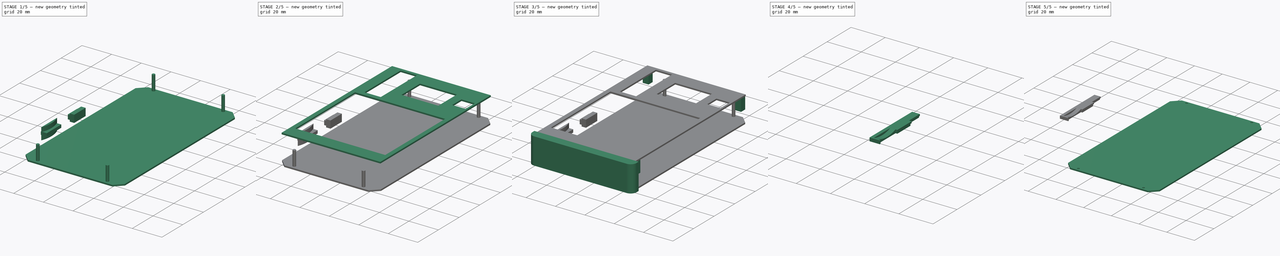
[diagram: build sequence overview — one tinted view per stage of 5, left to right]
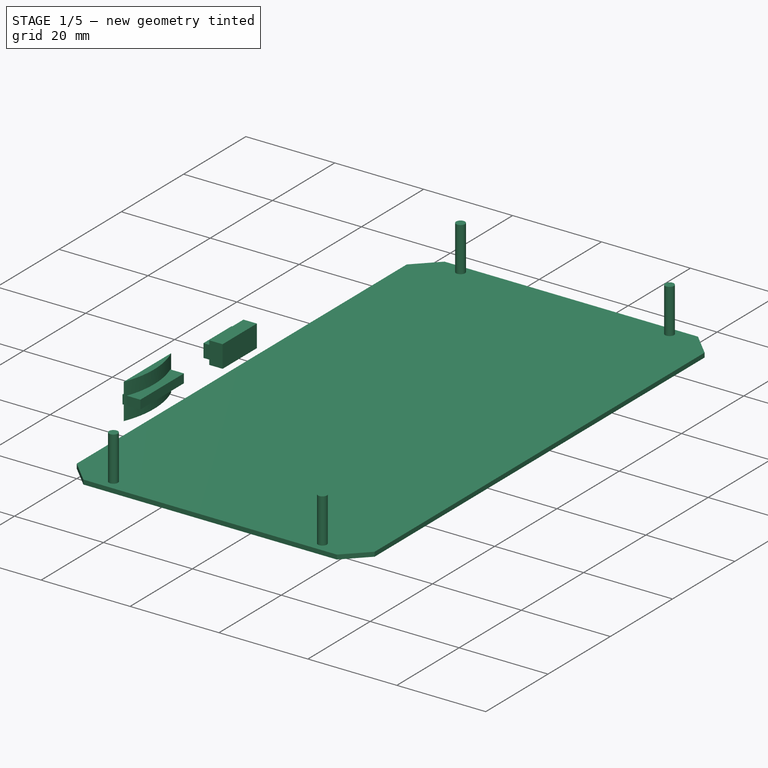
[diagram: stage 1 of 5 — iso view after this stage's code; geometry added in this stage tinted green]
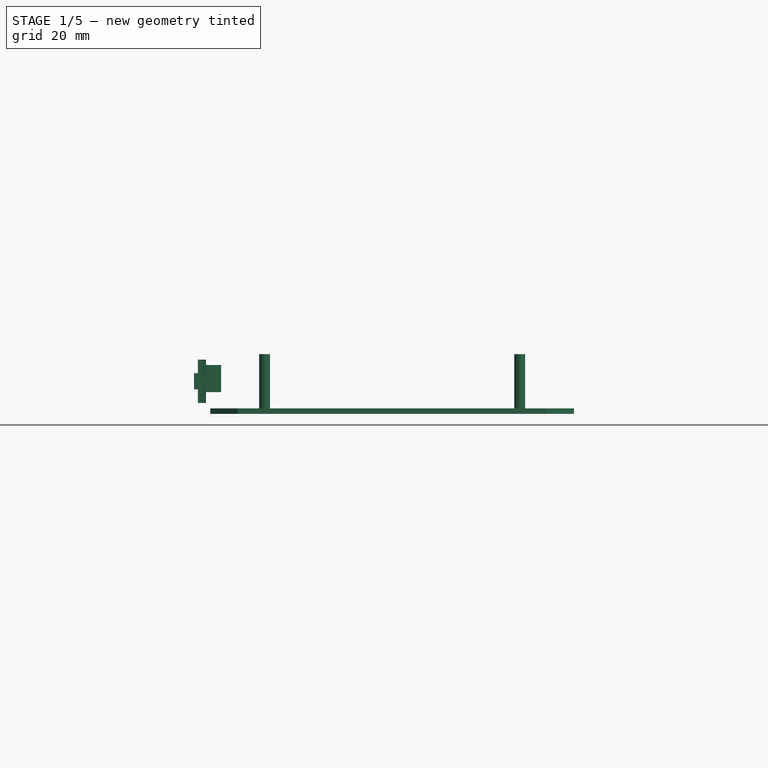
[diagram: stage 1 of 5 — front view after this stage's code; geometry added in this stage tinted green]
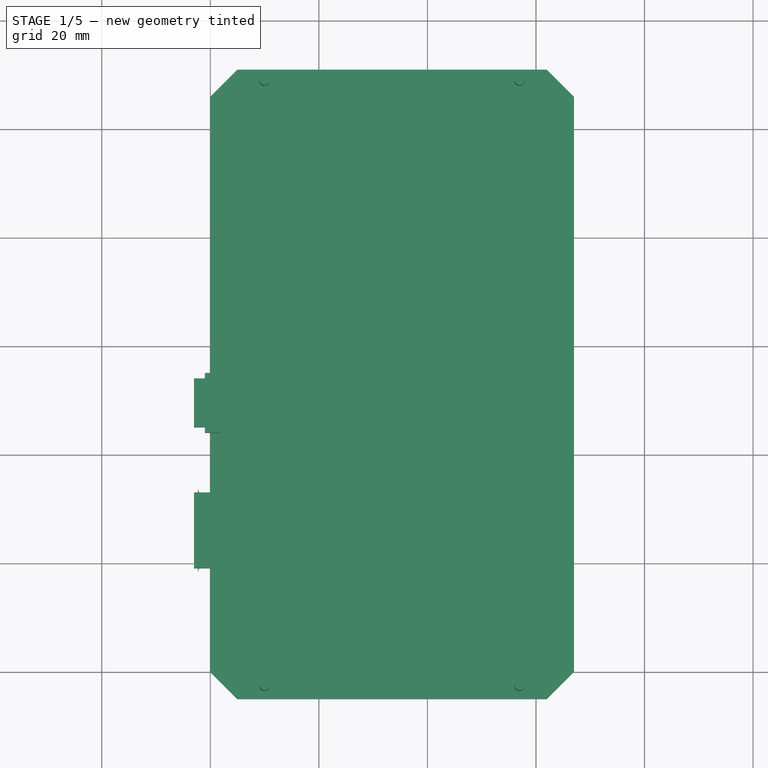
[diagram: stage 1 of 5 — top view after this stage's code; geometry added in this stage tinted green]
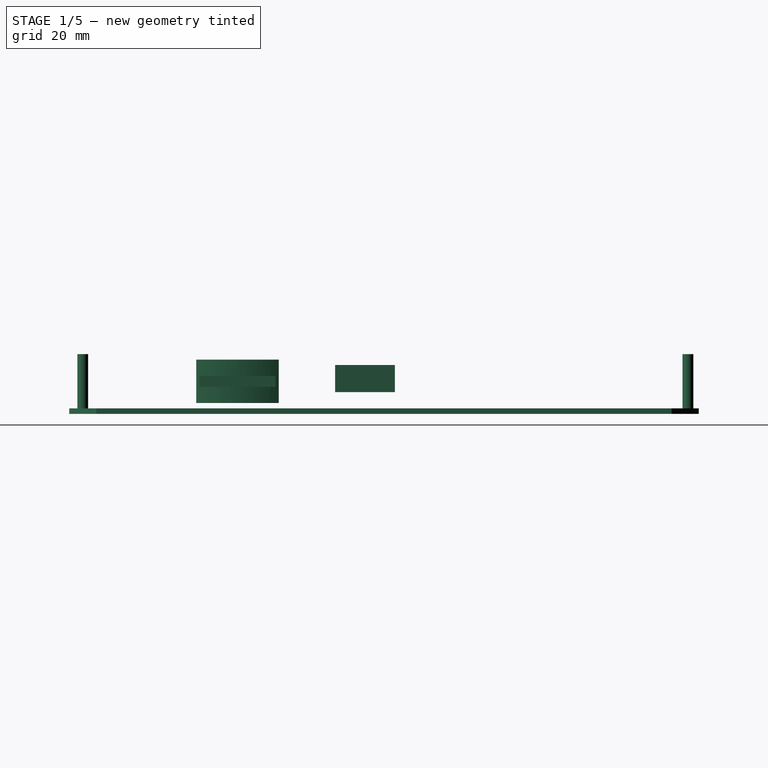
[diagram: stage 1 of 5 — right view after this stage's code; geometry added in this stage tinted green]
FCSTD DOCUMENT  (FreeCAD 0.15R4263 (Git))
Label: pavapro_box2mr
License: CC-BY 3.0
LicenseURL: http://creativecommons.org/licenses/by/3.0/
objects: Part::Box×15, Part::MultiFuse×6, Sketcher::SketchObject×4, PartDesign::Pad×4, Part::Cylinder×4, Part::Cut×3, Part::Mirroring×1, Part::MultiCommon×1
note: 42 computed .brp shape members not serialized (recipe doc carries the construction recipe); baked Part::Feature solids carry a one-line shape summary decoded from their .brp

FEATURE [Part::Box] Box013  label="Cube013"
  Height = 2
  Length = 4
  Placement = pos=(-3,19,-13) rot=(0,0,1;0rad)
  Width = 14
FEATURE [Part::Box] Box014  label="Cube014"
  Height = 3
  Length = 4
  Placement = pos=(-3,45,-13.5) rot=(0,0,1;0rad)
  Width = 9
FEATURE [Sketcher::SketchObject] Sketch001
  Placement = pos=(3.2,-20,-16) rot=(0,0,1;0rad)
  sketch-geometry (2):
    g0: ArcOfCircle CenterX=-24 CenterY=46 CenterZ=0 NormalX=0 NormalY=0 NormalZ=1 Radius=20 StartAngle=5.89342 EndAngle=6.67295
    g1: LineSegment StartX=-5.5 StartY=53.5993 StartZ=0 EndX=-5.5 EndY=38.4007 EndZ=0
  constraints (3):
    c: Vertical(g1)
    c: Coincident(g1,g0)
    c: Coincident(g1,g0)
FEATURE [PartDesign::Pad] Pad001
  Length = 8
  Length2 = 100
  Placement = pos=(3.2,-20,-16) rot=(0,0,1;0rad)
  Sketch = -> Sketch001
  Type = 0
FEATURE [Sketcher::SketchObject] Sketch002
  Placement = pos=(0,0,-18) rot=(0,0,1;0rad)
  sketch-geometry (8):
    g0: LineSegment StartX=0 StartY=0 StartZ=0 EndX=5 EndY=-5 EndZ=0
    g1: LineSegment StartX=5 StartY=-5 StartZ=0 EndX=62 EndY=-5 EndZ=0
    g2: LineSegment StartX=62 StartY=-5 StartZ=0 EndX=67 EndY=0 EndZ=0
    g3: LineSegment StartX=67 StartY=0 StartZ=0 EndX=67 EndY=106 EndZ=0
    g4: LineSegment StartX=67 StartY=106 StartZ=0 EndX=62 EndY=111 EndZ=0
    g5: LineSegment StartX=62 StartY=111 StartZ=0 EndX=5 EndY=111 EndZ=0
    g6: LineSegment StartX=5 StartY=111 StartZ=0 EndX=0 EndY=106 EndZ=0
    g7: LineSegment StartX=0 StartY=106 StartZ=0 EndX=0 EndY=0 EndZ=0
  constraints (9):
    c: Coincident(g-1,g0)
    c: Coincident(g0,g1)
    c: Coincident(g1,g2)
    c: Coincident(g2,g3)
    c: Coincident(g3,g4)
    c: Coincident(g4,g5)
    c: Coincident(g5,g6)
    c: Coincident(g6,g7)
    c: Coincident(g7,g0)
FEATURE [PartDesign::Pad] Pad002
  Length = 1
  Length2 = 100
  Placement = pos=(0,0,-18) rot=(0,0,1;0rad)
  Sketch = -> Sketch002
  Type = 0
FEATURE [Part::MultiFuse] Fusion004
  Placement = pos=(0,0,1) rot=(0,0,1;0rad)
FEATURE [Part::Box] Box016  label="Cube016"
  Height = 5
  Length = 3
  Placement = pos=(-1,44,-14) rot=(0,0,1;0rad)
  Width = 11
FEATURE [Part::MultiFuse] Fusion010
  Shapes = -> [Box016,Pad002,Box014,Box013,Fusion004,Pad001]
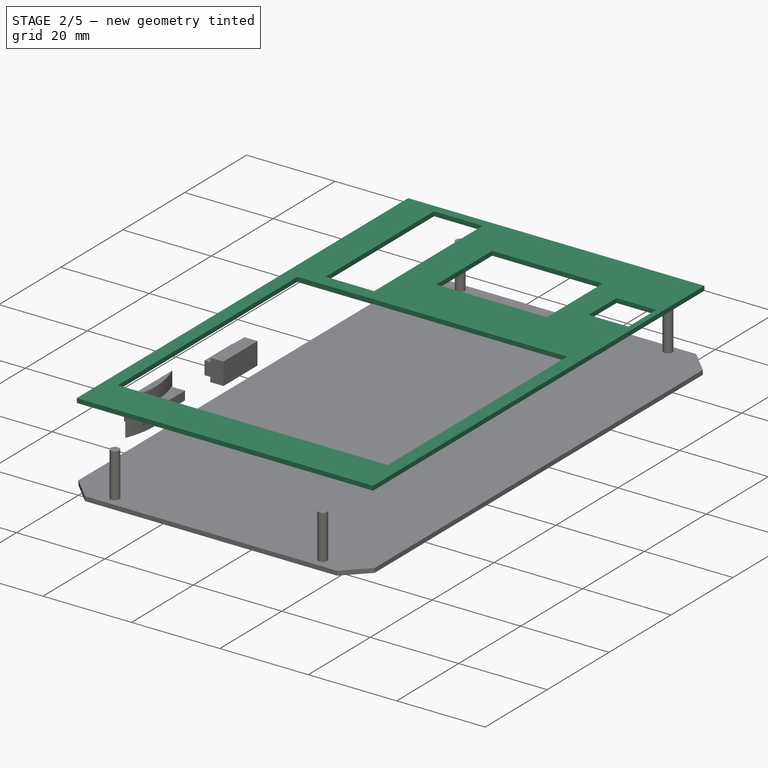
[diagram: stage 2 of 5 — iso view after this stage's code; geometry added in this stage tinted green]
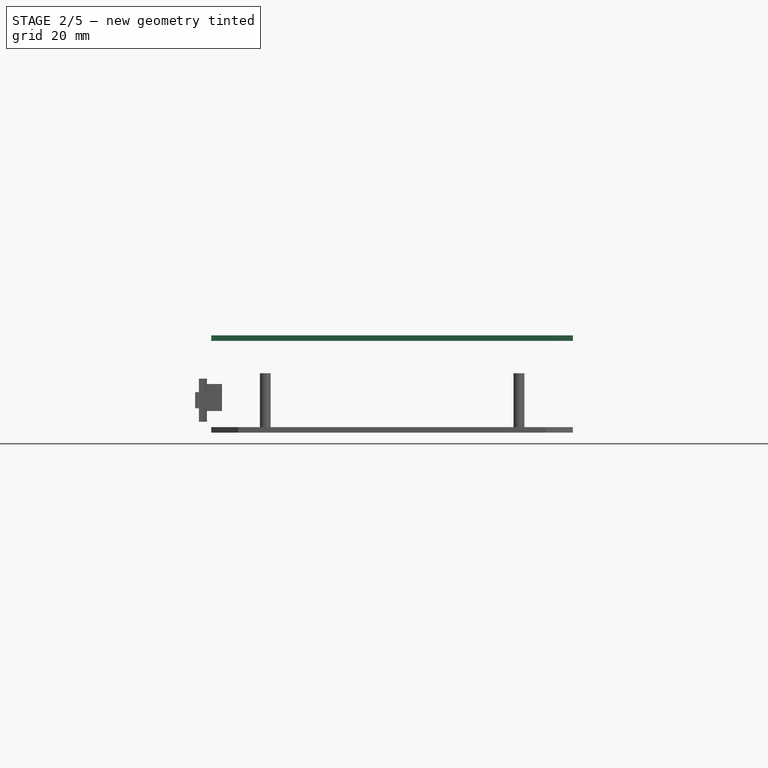
[diagram: stage 2 of 5 — front view after this stage's code; geometry added in this stage tinted green]
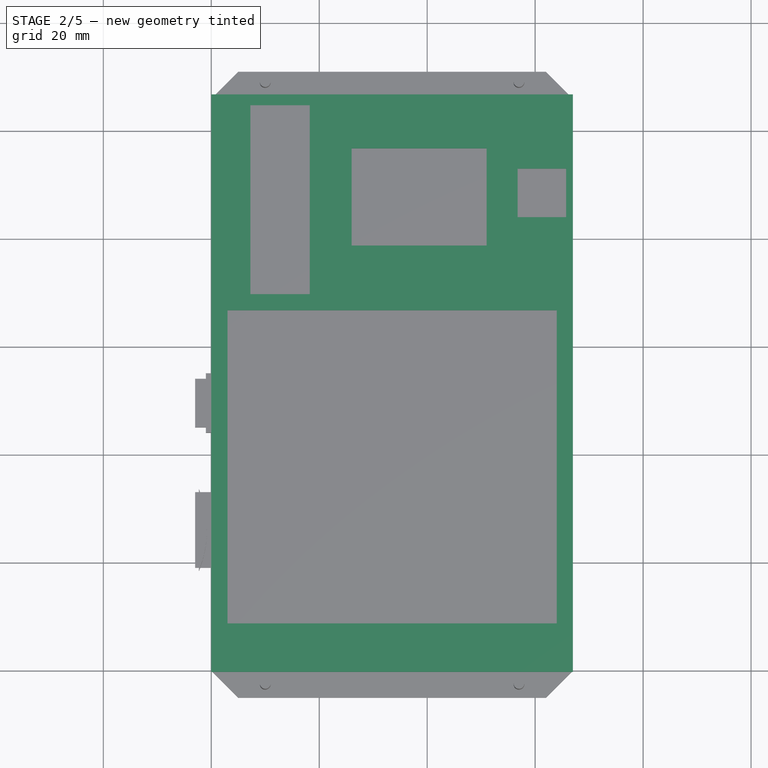
[diagram: stage 2 of 5 — top view after this stage's code; geometry added in this stage tinted green]
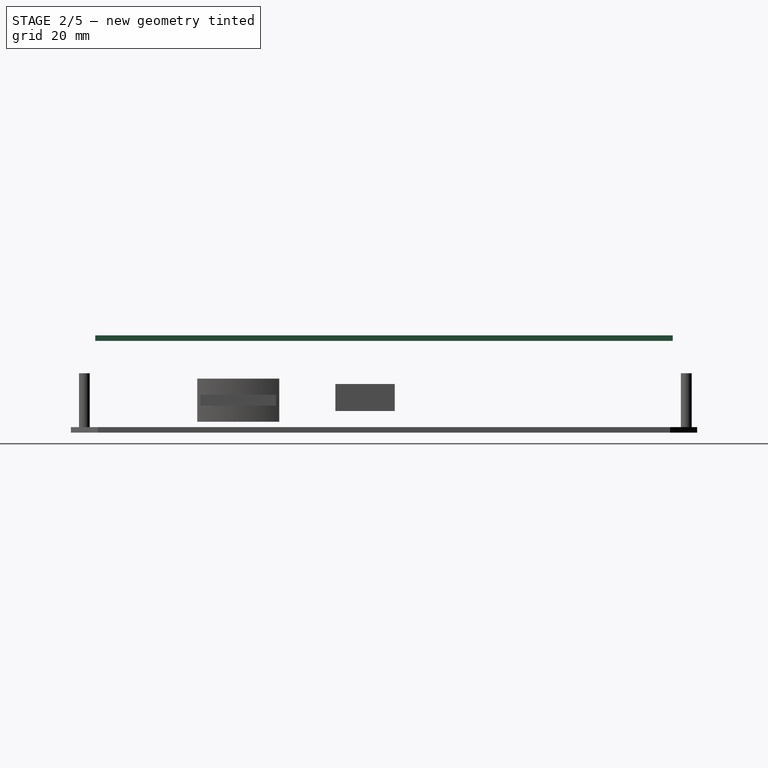
[diagram: stage 2 of 5 — right view after this stage's code; geometry added in this stage tinted green]
FEATURE [Part::Box] Box001  label="Cube001"
  Height = 1
  Length = 61
  Placement = pos=(3,8.5,0) rot=(0,0,1;0rad)
  Width = 58
FEATURE [Part::Box] Box002  label="Cube002"
  Height = 1
  Length = 11
  Placement = pos=(7.25,69.5,0) rot=(0,0,1;0rad)
  Width = 35
FEATURE [Part::Box] Box003  label="Cube003"
  Height = 1
  Length = 25
  Placement = pos=(26,78.5,0) rot=(0,0,1;0rad)
  Width = 18
FEATURE [Part::Box] Box004  label="Cube004"
  Height = 1
  Length = 9
  Placement = pos=(56.75,83.75,0) rot=(0,0,1;0rad)
  Width = 9
FEATURE [Part::Box] Box  label="Cube"
  Height = 1
  Length = 67
  Placement = pos=(0,-0.5,-1) rot=(0,0,1;0rad)
  Width = 107
FEATURE [Part::MultiFuse] Fusion
  Placement = pos=(0,0,-1) rot=(0,0,1;0rad)
  Shapes = -> [Box002,Box003,Box001,Box004]
FEATURE [Part::Cut] Cut
  Base = -> Box
  Tool = -> Fusion
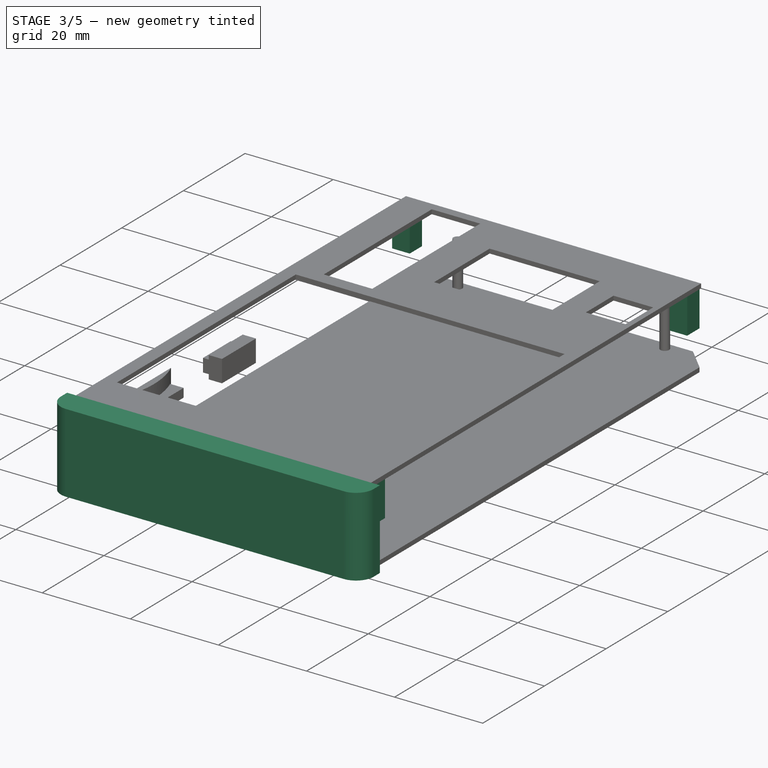
[diagram: stage 3 of 5 — iso view after this stage's code; geometry added in this stage tinted green]
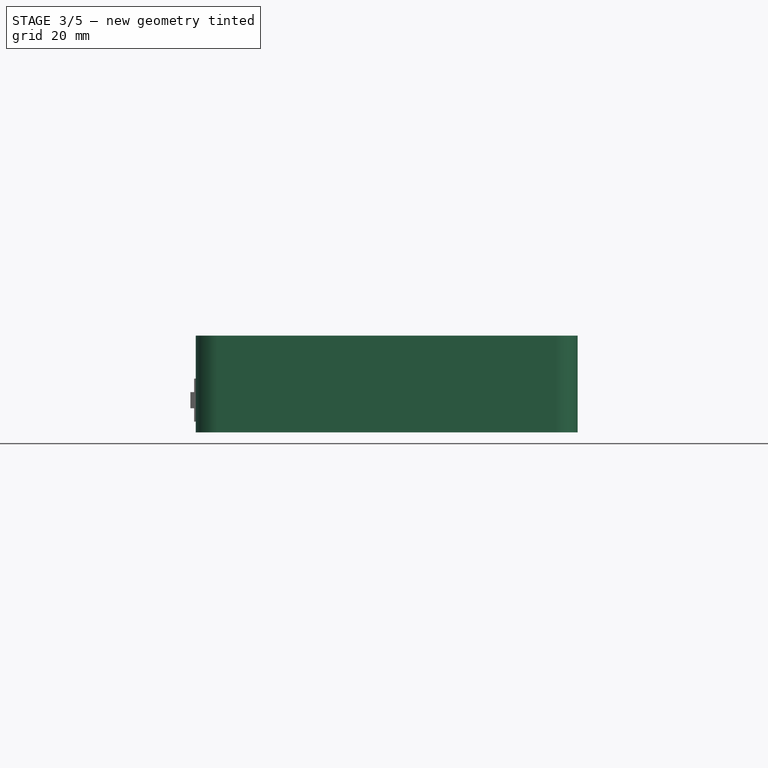
[diagram: stage 3 of 5 — front view after this stage's code; geometry added in this stage tinted green]
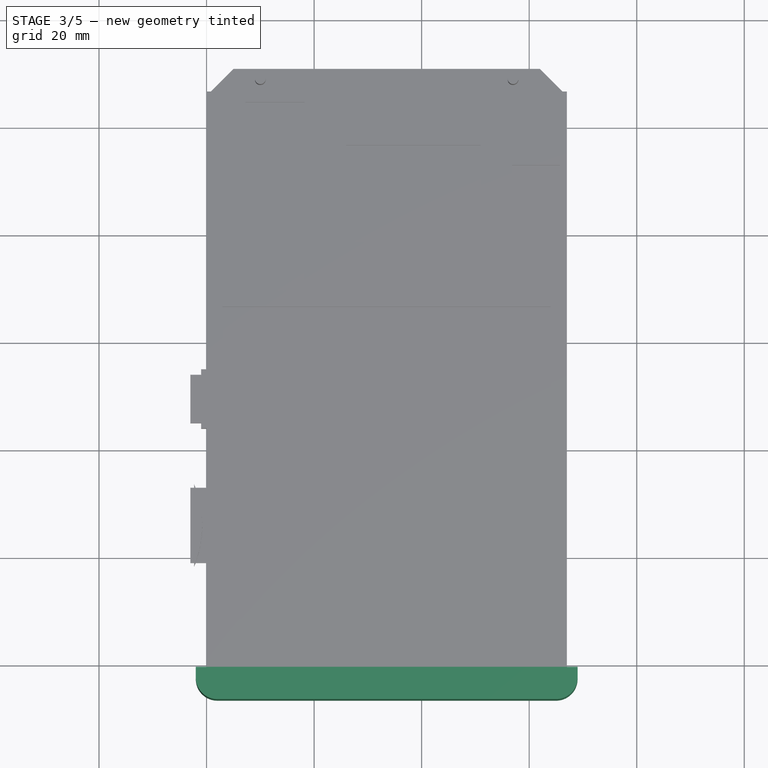
[diagram: stage 3 of 5 — top view after this stage's code; geometry added in this stage tinted green]
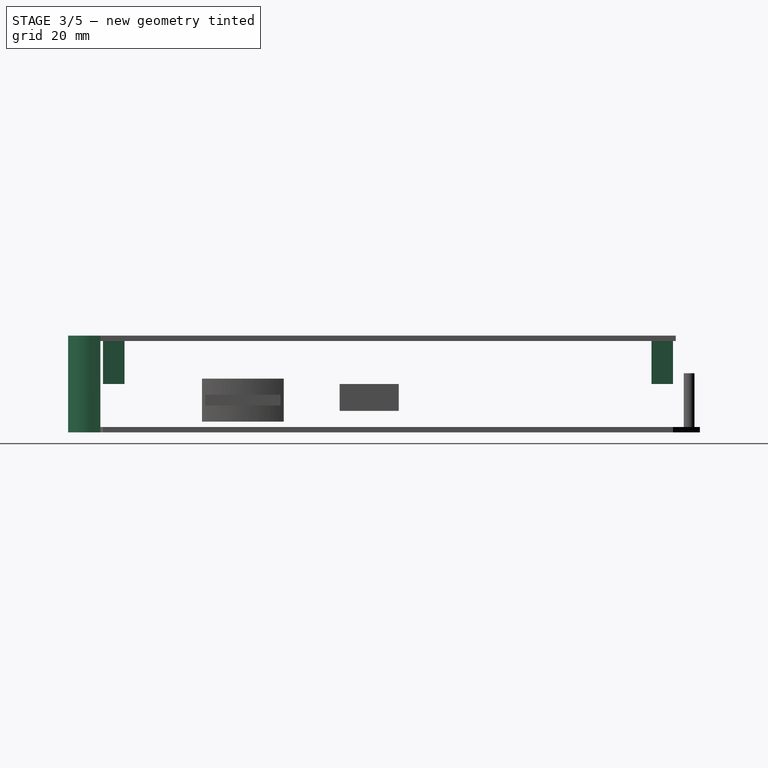
[diagram: stage 3 of 5 — right view after this stage's code; geometry added in this stage tinted green]
FEATURE [Sketcher::SketchObject] Sketch
  Placement = pos=(0,-2.5,-18) rot=(0,0,1;0rad)
  sketch-geometry (6):
    g0: LineSegment StartX=65 StartY=-4 StartZ=0 EndX=2 EndY=-4 EndZ=0
    g1: ArcOfCircle CenterX=65 CenterY=0 CenterZ=0 NormalX=0 NormalY=0 NormalZ=1 Radius=4 StartAngle=4.71239 EndAngle=6.28319
    g2: ArcOfCircle CenterX=2 CenterY=0 CenterZ=0 NormalX=0 NormalY=0 NormalZ=1 Radius=4 StartAngle=3.14159 EndAngle=4.71239
    g3: LineSegment StartX=-2 StartY=-1e-12 StartZ=0 EndX=-2 EndY=2 EndZ=0
    g4: LineSegment StartX=-2 StartY=2 StartZ=0 EndX=69 EndY=2 EndZ=0
    g5: LineSegment StartX=69 StartY=2 StartZ=0 EndX=69 EndY=2e-12 EndZ=0
  constraints (10):
    c: Horizontal(g0)
    c: PointOnObject(g1,g0)
    c: PointOnObject(g2,g0)
    c: Tangent(g2,g3)
    c: Coincident(g3,g4)
    c: Horizontal(g4)
    c: Coincident(g4,g5)
    c: Coincident(g5,g1)
    c: Vertical(g5)
    c: Tangent(g5,g1)
FEATURE [PartDesign::Pad] Pad
  Length = 18
  Length2 = 100
  Placement = pos=(0,-2.5,-18) rot=(0,0,1;0rad)
  Sketch = -> Sketch
  Type = 0
FEATURE [Part::Box] Box009  label="Cube009"
  Height = 8
  Length = 4
  Placement = pos=(0,0,-9) rot=(0,0,1;0rad)
  Width = 4
FEATURE [Part::Box] Box010  label="Cube010"
  Height = 8
  Length = 4
  Placement = pos=(63,0,-9) rot=(0,0,1;0rad)
  Width = 4
FEATURE [Part::Box] Box011  label="Cube011"
  Height = 8
  Length = 4
  Placement = pos=(0,102,-9) rot=(0,0,1;0rad)
  Width = 4
FEATURE [Part::Box] Box012  label="Cube012"
  Height = 8
  Length = 4
  Placement = pos=(63,102,-9) rot=(0,0,1;0rad)
  Width = 4
FEATURE [Part::MultiFuse] Fusion001
  Shapes = -> [Box009,Box010,Box011,Box012]
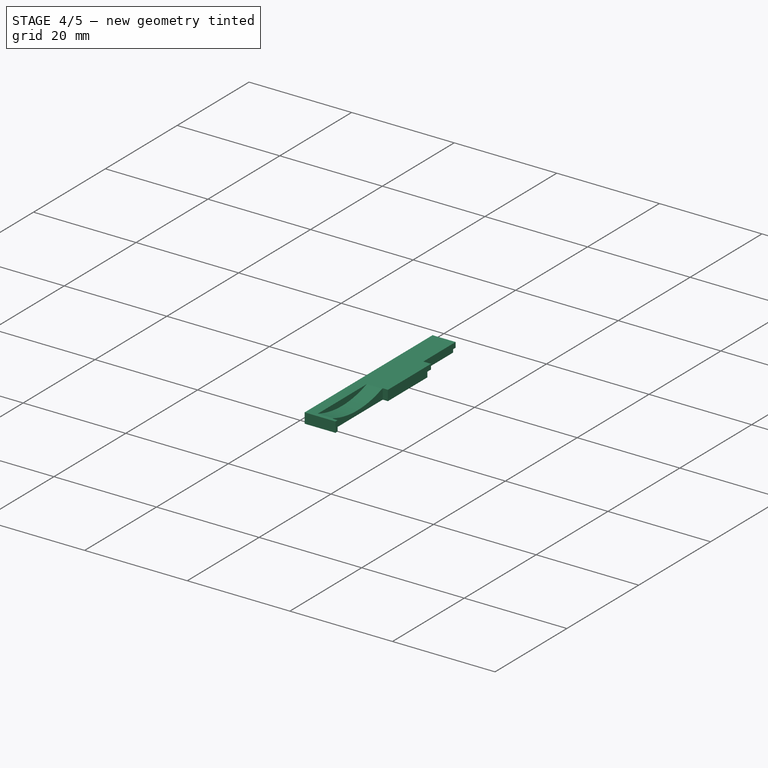
[diagram: stage 4 of 5 — iso view after this stage's code; geometry added in this stage tinted green]
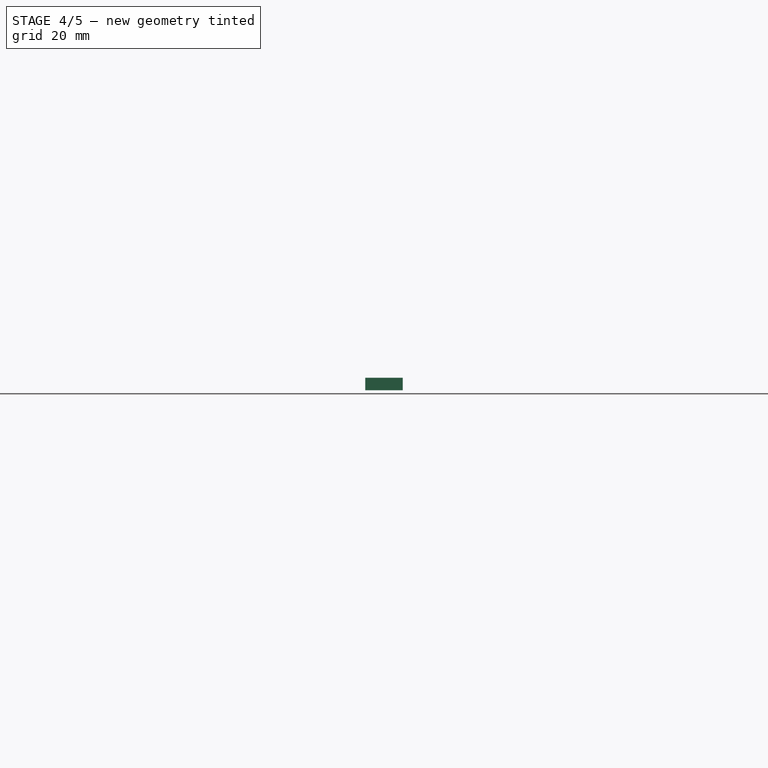
[diagram: stage 4 of 5 — front view after this stage's code; geometry added in this stage tinted green]
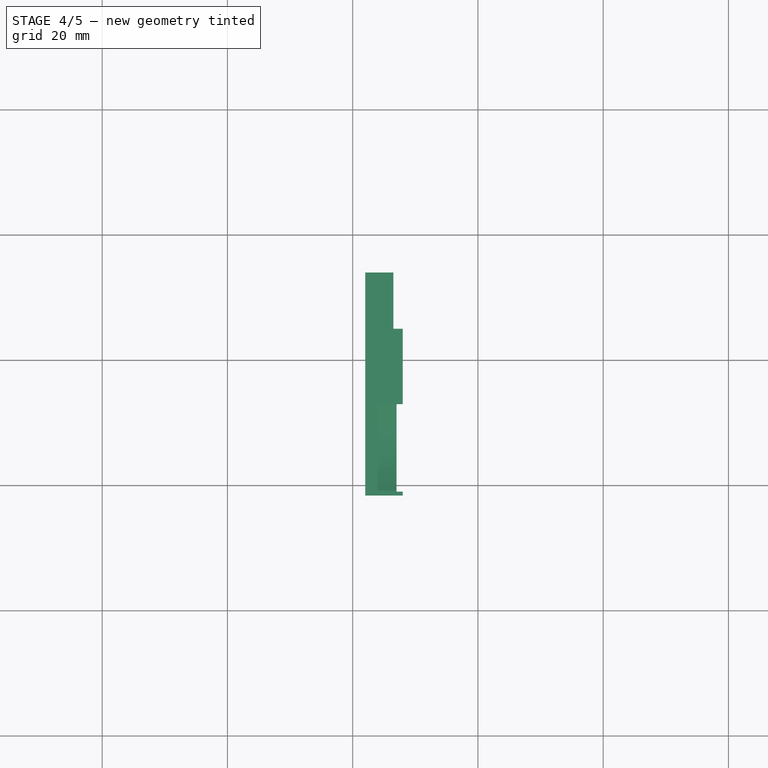
[diagram: stage 4 of 5 — top view after this stage's code; geometry added in this stage tinted green]
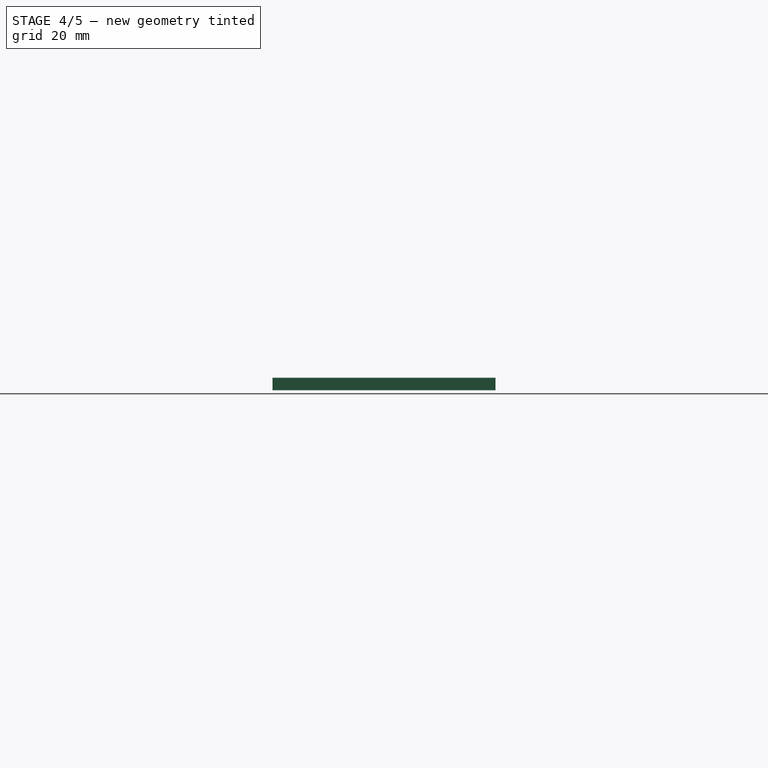
[diagram: stage 4 of 5 — right view after this stage's code; geometry added in this stage tinted green]
FEATURE [Part::Box] Box006  label="Cube006"
  Height = 18
  Length = 2
  Placement = pos=(-2,-0.5,-18) rot=(0,0,1;0rad)
  Width = 107
FEATURE [Part::Box] Box008  label="Cube008"
  Height = 18
  Length = 2
  Placement = pos=(67,-0.5,-18) rot=(0,0,1;0rad)
  Width = 107
FEATURE [Part::Mirroring] Part__Mirroring  label="Pad (Mirror #1)"
  Base = (0,0,0)
  Normal = (0,1,0)
  Placement = pos=(0,106,0) rot=(0,0,1;0rad)
  Source = -> Pad
FEATURE [Part::Box] Box015  label="Cube015"
  Height = 6
  Length = 4
  Placement = pos=(-3,18.4,-18) rot=(0,0,1;0rad)
  Width = 35.6
FEATURE [Part::MultiFuse] Fusion009
  Shapes = -> [Fusion001,Box006,Part__Mirroring,Pad,Box008,Cut]
FEATURE [Part::Cut] Cut003
  Base = -> Fusion009
  Tool = -> Fusion010
FEATURE [Part::MultiCommon] Common
  Placement = pos=(0,0,0) rot=(0,1,0;1.5708rad)
  Shapes = -> [Cut003,Box015]
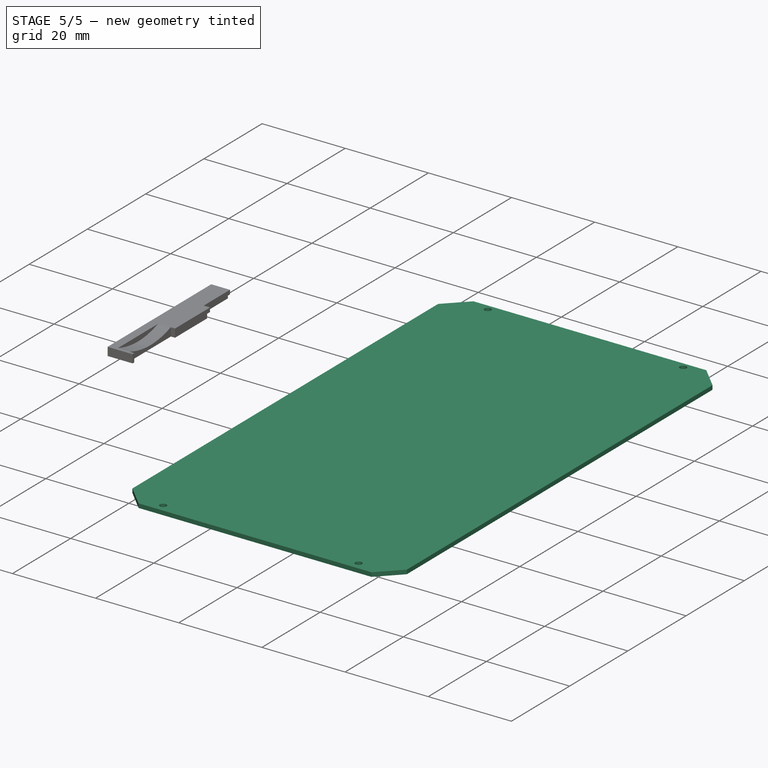
[diagram: stage 5 of 5 — iso view after this stage's code; geometry added in this stage tinted green]
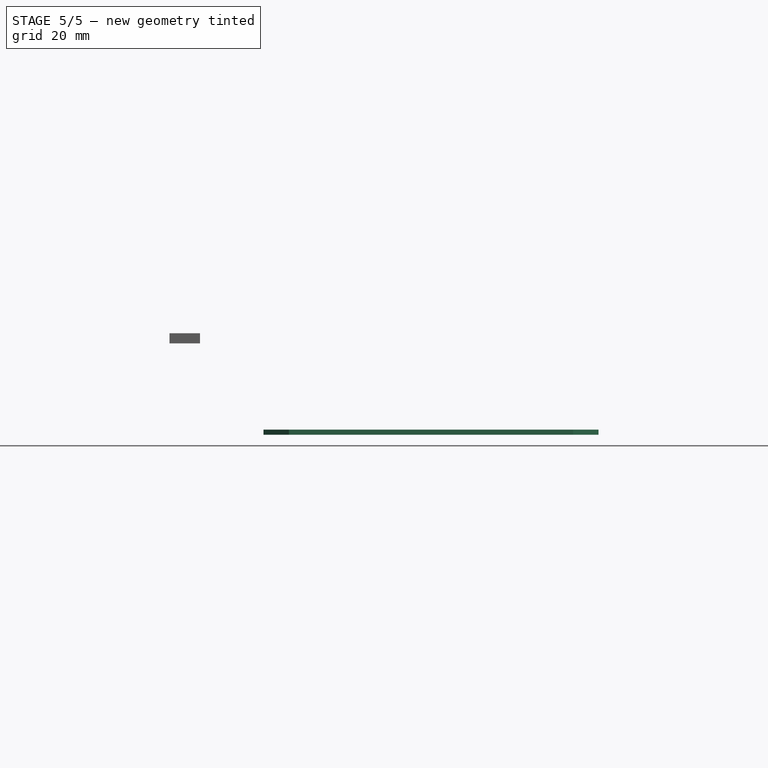
[diagram: stage 5 of 5 — front view after this stage's code; geometry added in this stage tinted green]
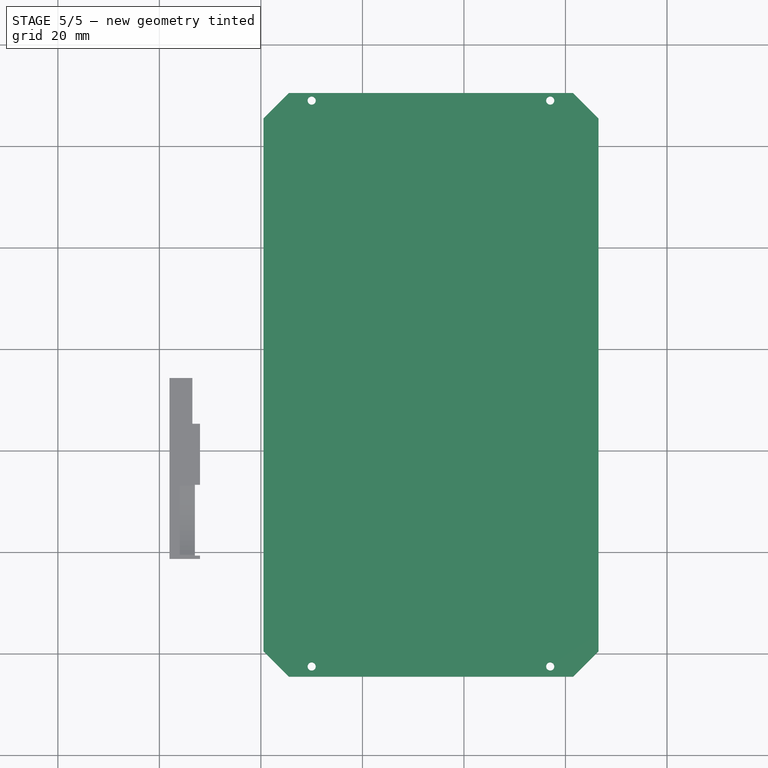
[diagram: stage 5 of 5 — top view after this stage's code; geometry added in this stage tinted green]
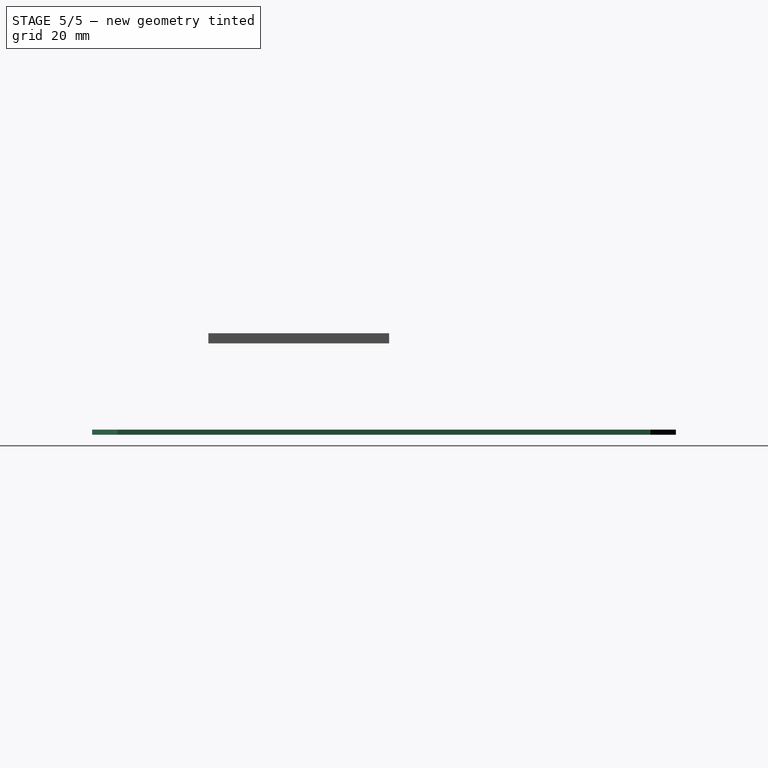
[diagram: stage 5 of 5 — right view after this stage's code; geometry added in this stage tinted green]
FEATURE [Sketcher::SketchObject] Sketch003
  Placement = pos=(0,0,-18) rot=(0,0,1;0rad)
  sketch-geometry (8):
    g0: LineSegment StartX=0.5 StartY=0.5 StartZ=0 EndX=5.5 EndY=-4.5 EndZ=0
    g1: LineSegment StartX=5.5 StartY=-4.5 StartZ=0 EndX=61.5 EndY=-4.5 EndZ=0
    g2: LineSegment StartX=61.5 StartY=-4.5 StartZ=0 EndX=66.5 EndY=0.5 EndZ=0
    g3: LineSegment StartX=66.5 StartY=0.5 StartZ=0 EndX=66.5 EndY=105.5 EndZ=0
    g4: LineSegment StartX=66.5 StartY=105.5 StartZ=0 EndX=61.5 EndY=110.5 EndZ=0
    g5: LineSegment StartX=61.5 StartY=110.5 StartZ=0 EndX=5.5 EndY=110.5 EndZ=0
    g6: LineSegment StartX=5.5 StartY=110.5 StartZ=0 EndX=0.5 EndY=105.5 EndZ=0
    g7: LineSegment StartX=0.5 StartY=105.5 StartZ=0 EndX=0.5 EndY=0.5 EndZ=0
  constraints (12):
    c: Coincident(g0,g1)
    c: Horizontal(g1)
    c: Coincident(g1,g2)
    c: Coincident(g2,g3)
    c: Vertical(g3)
    c: Coincident(g3,g4)
    c: Coincident(g4,g5)
    c: Horizontal(g5)
    c: Coincident(g5,g6)
    c: Coincident(g6,g7)
    c: Coincident(g7,g0)
    c: Vertical(g7)
FEATURE [PartDesign::Pad] Pad003
  Length = 1
  Length2 = 100
  Placement = pos=(0,0,-18) rot=(0,0,1;0rad)
  Sketch = -> Sketch003
  Type = 0
FEATURE [Part::Cylinder] Cylinder
  Angle = 360
  Height = 1
  Placement = pos=(10,-2.5,-18) rot=(0,0,1;0rad)
  Radius = 0.8
FEATURE [Part::Cylinder] Cylinder001
  Angle = 360
  Height = 1
  Placement = pos=(57,-2.5,-18) rot=(0,0,1;0rad)
  Radius = 0.8
FEATURE [Part::Cylinder] Cylinder002
  Angle = 360
  Height = 1
  Placement = pos=(57,109,-18) rot=(0,0,1;0rad)
  Radius = 0.8
FEATURE [Part::Cylinder] Cylinder003
  Angle = 360
  Height = 1
  Placement = pos=(10,109,-18) rot=(0,0,1;0rad)
  Radius = 0.8
FEATURE [Part::MultiFuse] Fusion006
  Shapes = -> [Cylinder,Cylinder001,Cylinder002,Cylinder003]
FEATURE [Part::Cut] Cut002
  Base = -> Pad003
  Tool = -> Fusion006
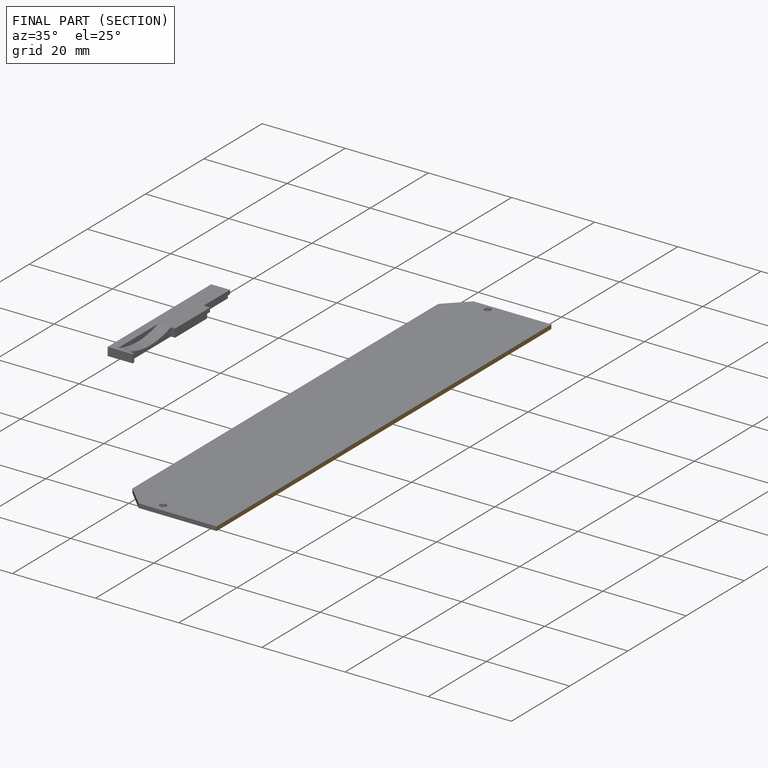
[diagram: finished part — half-section view (interior)]
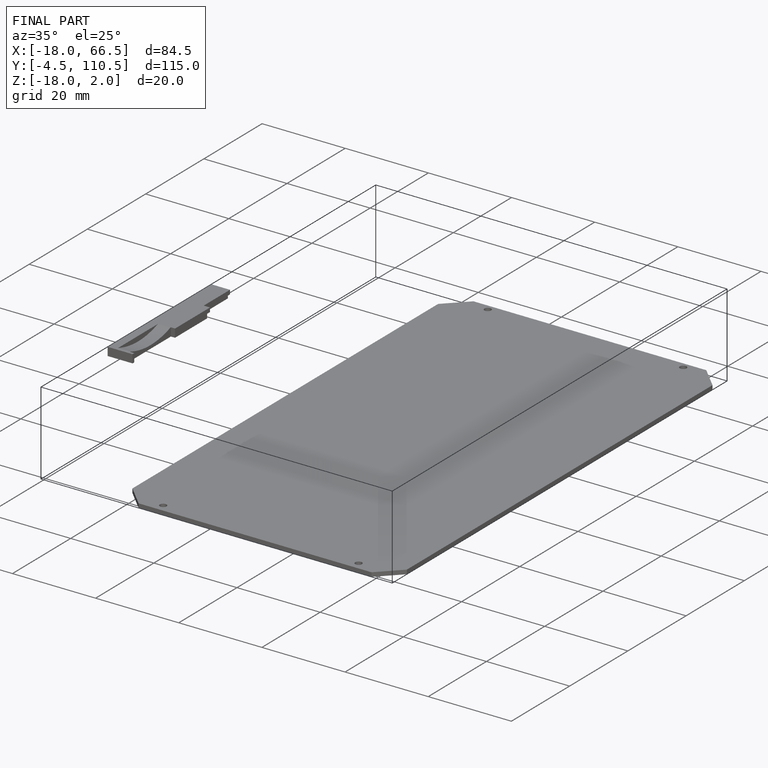
[diagram: finished part — iso view with bounding-box wireframe]
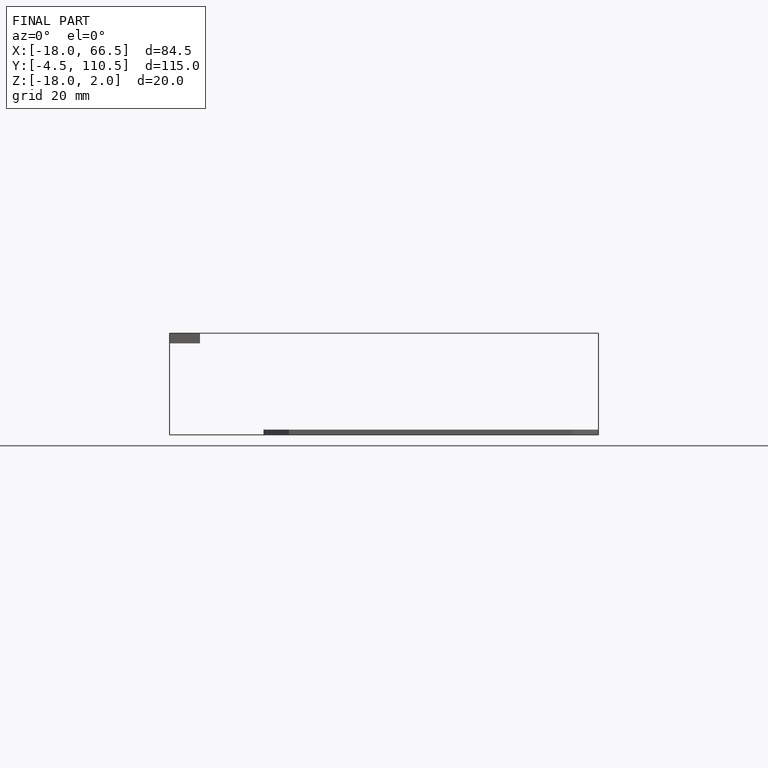
[diagram: finished part — front view with bounding-box wireframe]
